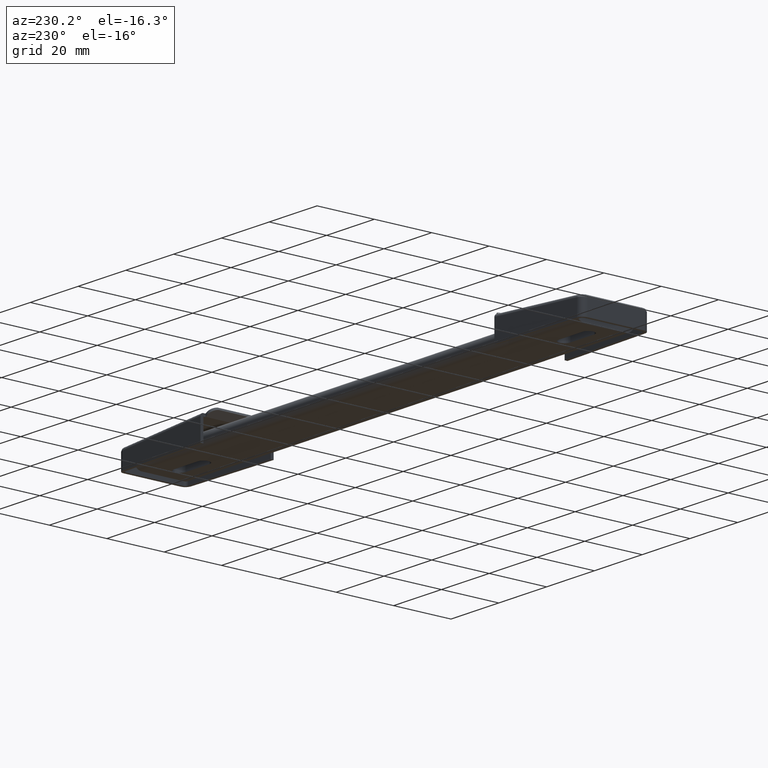
[diagram: clean part render]
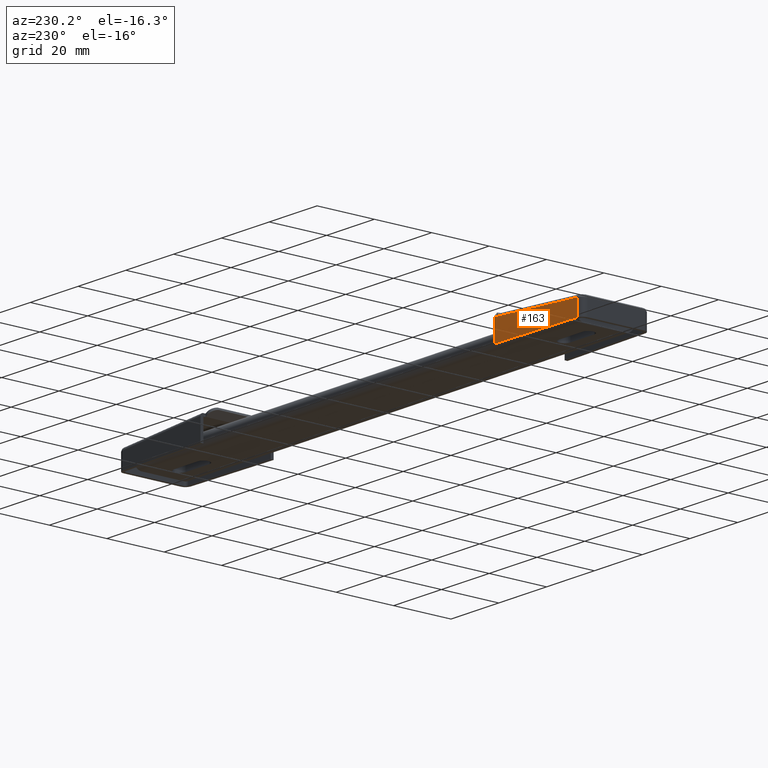
[diagram: same view with one face highlighted and labeled with its STEP entity id]
A machine part, auxiliary view. The second image highlights one B-rep face of the part: STEP entity #163.
In plain terms, the highlighted planar face has unit normal (-0.0252, 0.9997, 0).
Its self-contained STEP definition (entity closure, byte-faithful):
#163=ADVANCED_FACE('',(#287),#286,.T.);
#286=PLANE('',#1086);
#287=FACE_OUTER_BOUND('',#1087,.T.);
#1083=CARTESIAN_POINT('',(5.81449760894E+01,-1.28345101633E+01,-7.49983222875E-01));
#1084=DIRECTION('',(2.51810590883E-02,-9.99682906858E-01,0.00000000000E+00));
#1085=DIRECTION('',(9.99682906858E-01,2.51810590883E-02,0.00000000000E+00));
#1086=AXIS2_PLACEMENT_3D('',#1083,#1084,#1085);
#1087=EDGE_LOOP('',(#1557,#1558,#1559,#1560));
#1557=ORIENTED_EDGE('',*,*,#1953,.F.);
#1558=ORIENTED_EDGE('',*,*,#1954,.T.);
#1559=ORIENTED_EDGE('',*,*,#1955,.T.);
#1560=ORIENTED_EDGE('',*,*,#1948,.F.);
#1948=EDGE_CURVE('',#2259,#2266,#2267,.T.);
#1953=EDGE_CURVE('',#2300,#2259,#2301,.T.);
#1954=EDGE_CURVE('',#2300,#2307,#2308,.T.);
#1955=EDGE_CURVE('',#2307,#2266,#2314,.T.);
#2259=VERTEX_POINT('',#3540);
#2266=VERTEX_POINT('',#3545);
#2267=LINE('',#3546,#3547);
#2300=VERTEX_POINT('',#3565);
#2301=LINE('',#3566,#3567);
#2307=VERTEX_POINT('',#3569);
#2308=LINE('',#3570,#3571);
#2314=LINE('',#3573,#3574);
#3540=CARTESIAN_POINT('',(9.50503744193E+01,-1.19048983738E+01,0.00000000000E+00));
#3545=CARTESIAN_POINT('',(6.15000123012E+01,-1.27500000006E+01,0.00000000000E+00));
#3546=CARTESIAN_POINT('',(9.50503744193E+01,-1.19048983738E+01,0.00000000000E+00));
#3547=VECTOR('',#3548,3.35610040824E+01);
#3548=DIRECTION('',(-9.99682906858E-01,-2.51810590883E-02,0.00000000000E+00));
#3565=CARTESIAN_POINT('',(9.50503744193E+01,-1.19048983738E+01,5.60967098266E+00));
#3566=CARTESIAN_POINT('',(9.50503744193E+01,-1.19048983738E+01,5.60967098266E+00));
#3567=VECTOR('',#3568,5.60967098266E+00);
#3568=DIRECTION('',(0.00000000000E+00,0.00000000000E+00,-1.00000000000E+00));
#3569=CARTESIAN_POINT('',(6.15000123012E+01,-1.27500000006E+01,7.49983222875E+00));
#3570=CARTESIAN_POINT('',(9.50503744193E+01,-1.19048983738E+01,5.60967098266E+00));
#3571=VECTOR('',#3572,3.36141890361E+01);
#3572=DIRECTION('',(-9.98101191200E-01,-2.51412171793E-02,5.62310530253E-02));
#3573=CARTESIAN_POINT('',(6.15000123012E+01,-1.27500000006E+01,7.49983222875E+00));
#3574=VECTOR('',#3575,7.49983222875E+00);
#3575=DIRECTION('',(0.00000000000E+00,0.00000000000E+00,-1.00000000000E+00));